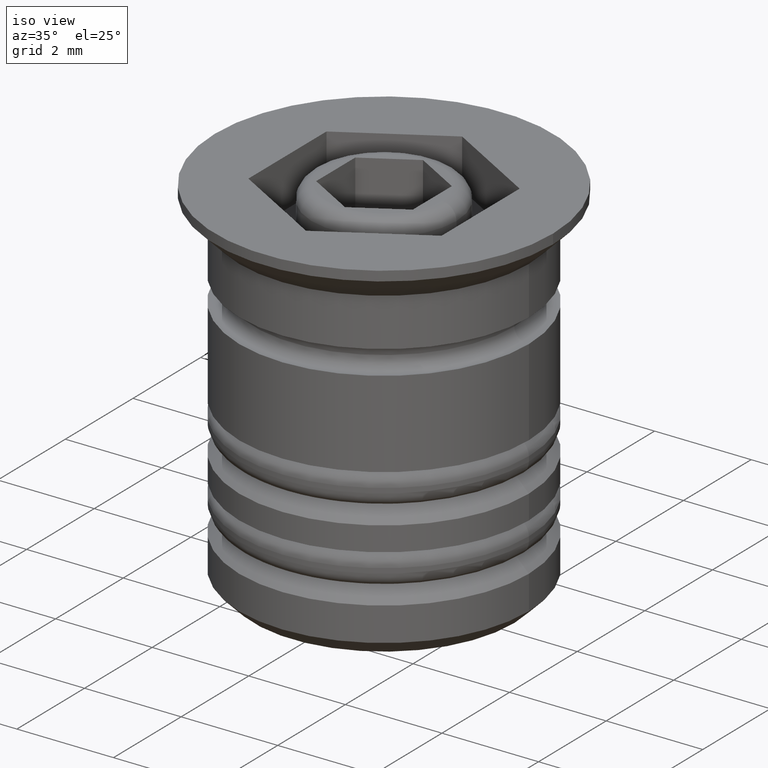
[diagram: clean part render]
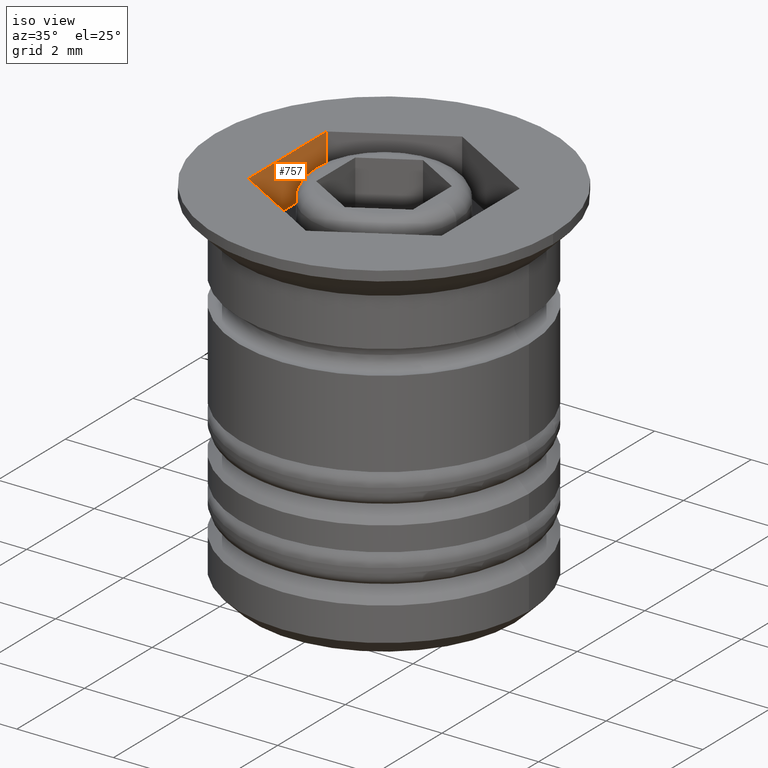
[diagram: same view with one face highlighted and labeled with its STEP entity id]
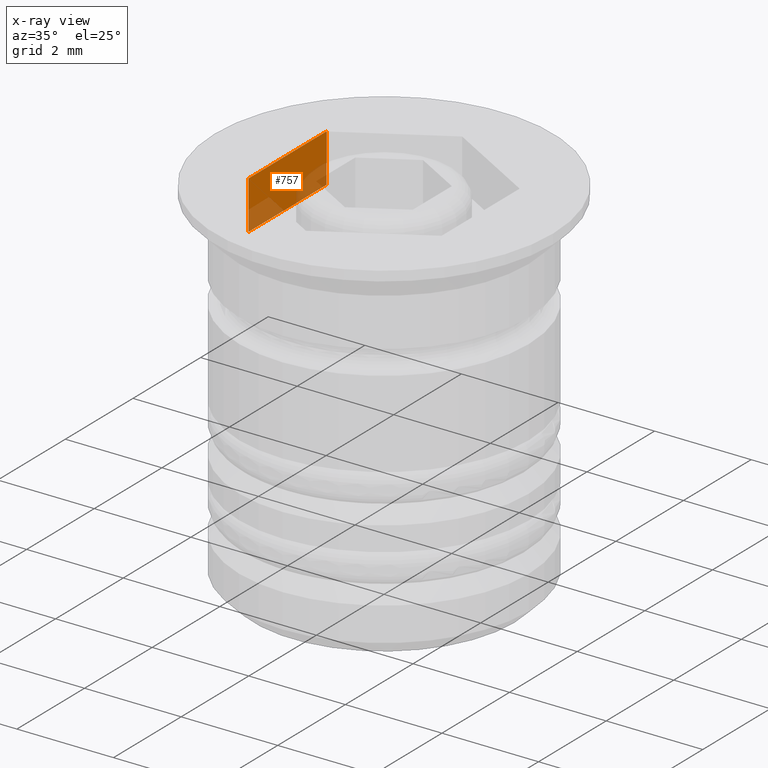
[diagram: x-ray of the same camera — body ghosted, the highlighted face saturated]
A machine part, iso view. The second image highlights one B-rep face of the part: STEP entity #757.
The next image is the same camera in x-ray: the body ghosted, the highlighted face saturated — about 29% of this face is hidden behind the body in this view.
In plain terms, the highlighted planar face has unit normal (-1, 0, -0).
Its self-contained STEP definition (entity closure, byte-faithful):
#154 = CARTESIAN_POINT ( 'NONE',  ( -2.000000000000000000, 1.154700538379251018, 0.000000000000000000 ) ) ;
#166 = VERTEX_POINT ( 'NONE', #154 ) ;
#182 = ORIENTED_EDGE ( 'NONE', *, *, #550, .F. ) ;
#233 = PLANE ( 'NONE',  #1567 ) ;
#252 = LINE ( 'NONE', #1106, #965 ) ;
#338 = ORIENTED_EDGE ( 'NONE', *, *, #1829, .T. ) ;
#519 = FACE_OUTER_BOUND ( 'NONE', #1560, .T. ) ;
#520 = CARTESIAN_POINT ( 'NONE',  ( -2.000000000000000000, 1.154700538379251018, -1.000000000000000000 ) ) ;
#521 = EDGE_CURVE ( 'NONE', #166, #1137, #808, .T. ) ;
#526 = CARTESIAN_POINT ( 'NONE',  ( -2.000000000000000000, 1.154700538379251018, 0.000000000000000000 ) ) ;
#550 = EDGE_CURVE ( 'NONE', #1328, #1137, #252, .T. ) ;
#570 = CARTESIAN_POINT ( 'NONE',  ( -2.000000000000000000, -1.154700538379252128, -1.000000000000000000 ) ) ;
#573 = LINE ( 'NONE', #1526, #1115 ) ;
#581 = VERTEX_POINT ( 'NONE', #520 ) ;
#617 = ORIENTED_EDGE ( 'NONE', *, *, #521, .T. ) ;
#698 = EDGE_CURVE ( 'NONE', #581, #1328, #573, .T. ) ;
#757 = ADVANCED_FACE ( 'NONE', ( #519 ), #233, .F. ) ;
#793 = DIRECTION ( 'NONE',  ( -0.000000000000000000, 0.000000000000000000, 1.000000000000000000 ) ) ;
#808 = LINE ( 'NONE', #526, #1258 ) ;
#815 = DIRECTION ( 'NONE',  ( 0.000000000000000000, -1.000000000000000000, 0.000000000000000000 ) ) ;
#844 = DIRECTION ( 'NONE',  ( 0.000000000000000000, -1.000000000000000000, 0.000000000000000000 ) ) ;
#899 = CARTESIAN_POINT ( 'NONE',  ( -2.000000000000000000, -1.154700538379252128, 0.000000000000000000 ) ) ;
#965 = VECTOR ( 'NONE', #1083, 1000.000000000000000 ) ;
#1057 = CARTESIAN_POINT ( 'NONE',  ( -2.000000000000000000, 1.154700538379251018, -1.000000000000000000 ) ) ;
#1083 = DIRECTION ( 'NONE',  ( -0.000000000000000000, -0.000000000000000000, 1.000000000000000000 ) ) ;
#1106 = CARTESIAN_POINT ( 'NONE',  ( -2.000000000000000000, -1.154700538379252128, -1.000000000000000000 ) ) ;
#1115 = VECTOR ( 'NONE', #844, 1000.000000000000000 ) ;
#1137 = VERTEX_POINT ( 'NONE', #899 ) ;
#1258 = VECTOR ( 'NONE', #815, 1000.000000000000000 ) ;
#1328 = VERTEX_POINT ( 'NONE', #570 ) ;
#1501 = DIRECTION ( 'NONE',  ( -1.000000000000000000, 0.000000000000000000, -0.000000000000000000 ) ) ;
#1526 = CARTESIAN_POINT ( 'NONE',  ( -2.000000000000000000, 1.154700538379251018, -1.000000000000000000 ) ) ;
#1537 = VECTOR ( 'NONE', #1604, 1000.000000000000000 ) ;
#1560 = EDGE_LOOP ( 'NONE', ( #617, #182, #1662, #338 ) ) ;
#1567 = AXIS2_PLACEMENT_3D ( 'NONE', #1652, #1501, #793 ) ;
#1604 = DIRECTION ( 'NONE',  ( -0.000000000000000000, -0.000000000000000000, 1.000000000000000000 ) ) ;
#1652 = CARTESIAN_POINT ( 'NONE',  ( -2.000000000000000000, 1.154700538379251018, -1.000000000000000000 ) ) ;
#1662 = ORIENTED_EDGE ( 'NONE', *, *, #698, .F. ) ;
#1742 = LINE ( 'NONE', #1057, #1537 ) ;
#1829 = EDGE_CURVE ( 'NONE', #581, #166, #1742, .T. ) ;